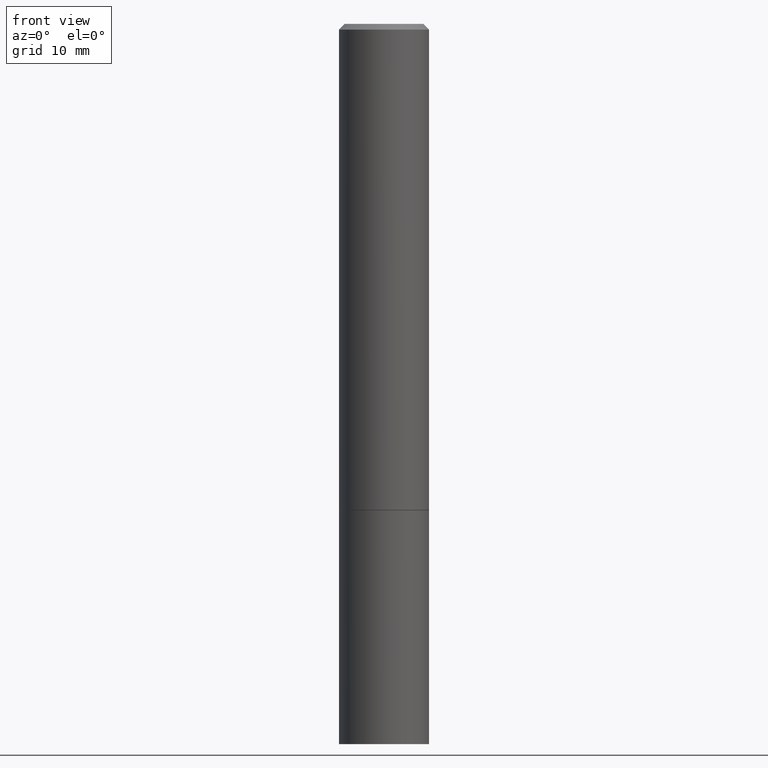
[diagram: clean part render]
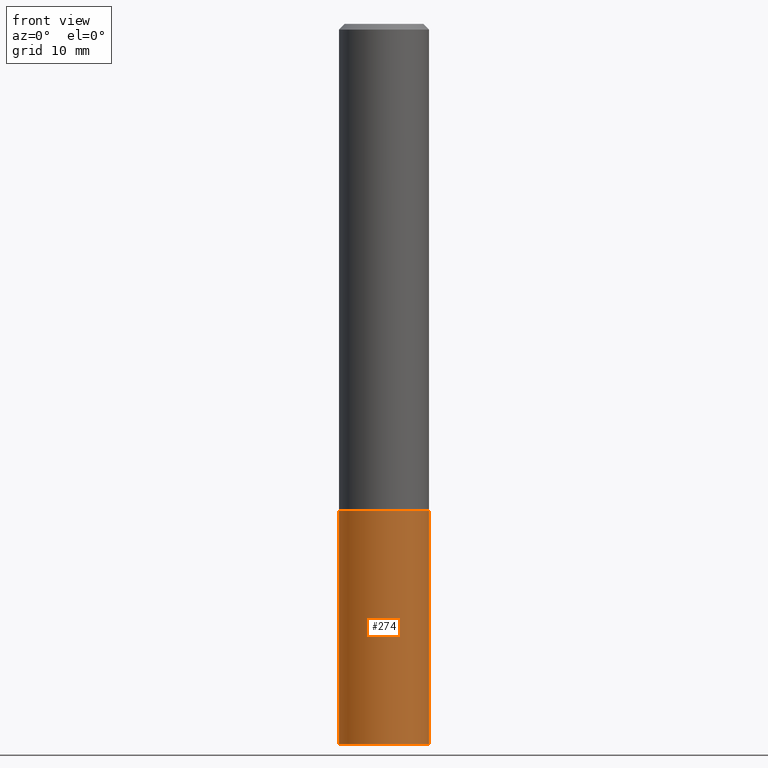
[diagram: same view with one face highlighted and labeled with its STEP entity id]
A machine part, front view. The second image highlights one B-rep face of the part: STEP entity #274.
In plain terms, the highlighted cylindrical surface (partial cylindrical patch) has radius 3.9688 mm, axis along (-0, 0, 1).
Its self-contained STEP definition (entity closure, byte-faithful):
#1 = AXIS2_PLACEMENT_3D ( 'NONE', #130, #101, #365 ) ;
#10 = EDGE_LOOP ( 'NONE', ( #325, #111, #86, #240 ) ) ;
#27 = DIRECTION ( 'NONE',  ( 1.000000000000000000, -6.982962677686269077E-15, 0.000000000000000000 ) ) ;
#38 = AXIS2_PLACEMENT_3D ( 'NONE', #55, #226, #27 ) ;
#46 = EDGE_CURVE ( 'NONE', #355, #183, #310, .T. ) ;
#50 = DIRECTION ( 'NONE',  ( -2.445468806185136597E-29, 3.491481338843145583E-15, 1.000000000000000000 ) ) ;
#55 = CARTESIAN_POINT ( 'NONE',  ( 4.127951344840510809E-29, -5.893620499967230340E-15, -1.688000000000000167 ) ) ;
#64 = VERTEX_POINT ( 'NONE', #281 ) ;
#80 = CYLINDRICAL_SURFACE ( 'NONE', #298, 0.1562500000000000000 ) ;
#86 = ORIENTED_EDGE ( 'NONE', *, *, #46, .T. ) ;
#101 = DIRECTION ( 'NONE',  ( -2.445468806185136597E-29, 3.491481338843145583E-15, 1.000000000000000000 ) ) ;
#102 = VECTOR ( 'NONE', #330, 39.37007874015748143 ) ;
#111 = ORIENTED_EDGE ( 'NONE', *, *, #165, .T. ) ;
#127 = CARTESIAN_POINT ( 'NONE',  ( 0.1562500000000000000, -1.091087918388479174E-15, 7.619026212181150377E-30 ) ) ;
#130 = CARTESIAN_POINT ( 'NONE',  ( 6.113672015462842613E-29, -8.728703347107864943E-15, -2.500000000000000000 ) ) ;
#134 = DIRECTION ( 'NONE',  ( 1.000000000000000000, -6.982962677686266711E-15, 4.876176775795936353E-29 ) ) ;
#145 = CARTESIAN_POINT ( 'NONE',  ( -0.1562500000000000000, 1.110223024625156540E-15, -7.685836078523291160E-30 ) ) ;
#161 = CARTESIAN_POINT ( 'NONE',  ( 0.1562500000000000000, -6.984708418355709513E-15, -1.688000000000000167 ) ) ;
#165 = EDGE_CURVE ( 'NONE', #322, #355, #242, .T. ) ;
#177 = LINE ( 'NONE', #145, #349 ) ;
#183 = VERTEX_POINT ( 'NONE', #161 ) ;
#208 = CARTESIAN_POINT ( 'NONE',  ( -0.1562500000000000000, -6.200938898912389918E-15, -2.500000000000000000 ) ) ;
#226 = DIRECTION ( 'NONE',  ( -2.445468806185136597E-29, 3.491481338843145583E-15, 1.000000000000000000 ) ) ;
#240 = ORIENTED_EDGE ( 'NONE', *, *, #266, .F. ) ;
#242 = CIRCLE ( 'NONE', #1, 0.1562500000000000000 ) ;
#254 = FACE_OUTER_BOUND ( 'NONE', #10, .T. ) ;
#256 = CARTESIAN_POINT ( 'NONE',  ( 0.000000000000000000, 0.000000000000000000, 0.000000000000000000 ) ) ;
#266 = EDGE_CURVE ( 'NONE', #64, #183, #284, .T. ) ;
#271 = DIRECTION ( 'NONE',  ( -2.445468806185136877E-29, 3.491481338843145188E-15, 1.000000000000000000 ) ) ;
#274 = ADVANCED_FACE ( 'NONE', ( #254 ), #80, .T. ) ;
#281 = CARTESIAN_POINT ( 'NONE',  ( -0.1562500000000000000, -6.200938898912389918E-15, -1.688000000000000167 ) ) ;
#284 = CIRCLE ( 'NONE', #38, 0.1562500000000000000 ) ;
#298 = AXIS2_PLACEMENT_3D ( 'NONE', #256, #50, #134 ) ;
#310 = LINE ( 'NONE', #127, #102 ) ;
#322 = VERTEX_POINT ( 'NONE', #208 ) ;
#325 = ORIENTED_EDGE ( 'NONE', *, *, #352, .F. ) ;
#330 = DIRECTION ( 'NONE',  ( -2.445468806185136877E-29, 3.491481338843145188E-15, 1.000000000000000000 ) ) ;
#349 = VECTOR ( 'NONE', #271, 39.37007874015748143 ) ;
#352 = EDGE_CURVE ( 'NONE', #322, #64, #177, .T. ) ;
#354 = CARTESIAN_POINT ( 'NONE',  ( 0.1562500000000000000, -9.819791265496344905E-15, -2.500000000000000000 ) ) ;
#355 = VERTEX_POINT ( 'NONE', #354 ) ;
#365 = DIRECTION ( 'NONE',  ( 1.000000000000000000, -6.982962677686269077E-15, 0.000000000000000000 ) ) ;